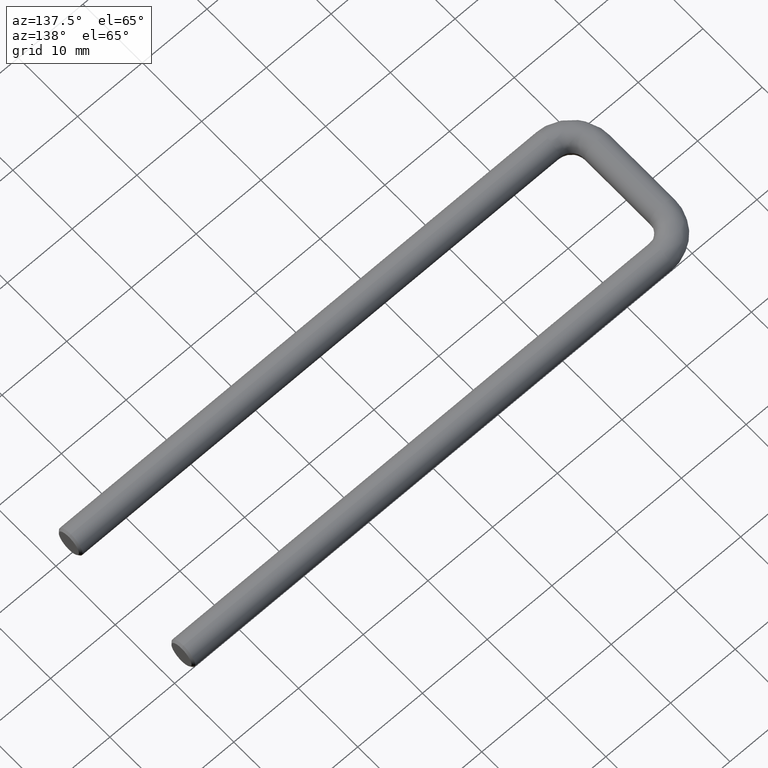
[diagram: clean part render]
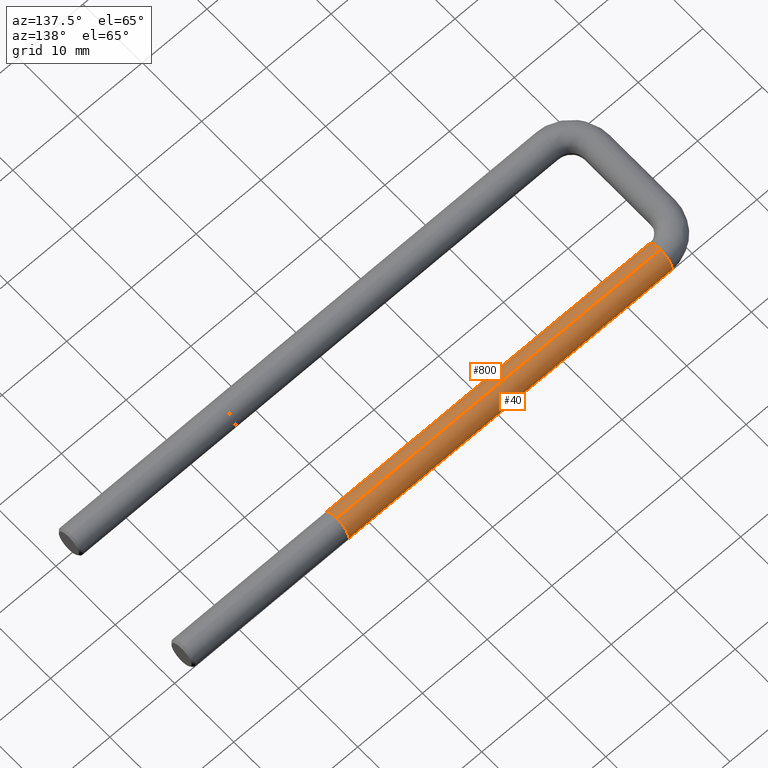
[diagram: same view with one multi-face feature highlighted, each face labeled with its STEP entity id]
A machine part, auxiliary view. The highlighted faces form ONE feature: a constant-radius fillet chain: 2 tangent blend faces with common blend radius 2 mm. The faces share edges in the B-rep.
Their STEP definitions:
[1] entity #800 (Cylinder):
#12 = CARTESIAN_POINT ( 'NONE',  ( 3.999999999999996400, 17.00000000000000000, 9.117408447827258500E-010 ) ) ;
#31 = CARTESIAN_POINT ( 'NONE',  ( 4.000000000000000000, 19.00000000000000000, 0.0000000000000000000 ) ) ;
#46 = CARTESIAN_POINT ( 'NONE',  ( 4.000000000000000000, 19.00000000000000000, 2.000000000000000000 ) ) ;
#112 = CARTESIAN_POINT ( 'NONE',  ( 54.00000000000000000, 19.00000000000000000, 0.0000000000000000000 ) ) ;
#129 = EDGE_CURVE ( 'NONE', #477, #500, #529, .T. ) ;
#172 = CARTESIAN_POINT ( 'NONE',  ( 54.00000000000000000, 19.00000000000000000, 0.0000000000000000000 ) ) ;
#177 = DIRECTION ( 'NONE',  ( 1.000000000000000000, 0.0000000000000000000, 0.0000000000000000000 ) ) ;
#215 = EDGE_CURVE ( 'NONE', #751, #268, #780, .T. ) ;
#268 = VERTEX_POINT ( 'NONE', #46 ) ;
#272 = AXIS2_PLACEMENT_3D ( 'NONE', #580, #583, #589 ) ;
#296 = DIRECTION ( 'NONE',  ( 0.0000000000000000000, 0.0000000000000000000, -1.000000000000000000 ) ) ;
#307 = EDGE_LOOP ( 'NONE', ( #822, #811, #796, #760, #582 ) ) ;
#415 = CARTESIAN_POINT ( 'NONE',  ( 54.00000000000000000, 19.00000000000000000, -2.000000000000000000 ) ) ;
#417 = VERTEX_POINT ( 'NONE', #774 ) ;
#423 = DIRECTION ( 'NONE',  ( -1.000000000000000000, 0.0000000000000000000, 0.0000000000000000000 ) ) ;
#428 = EDGE_CURVE ( 'NONE', #500, #417, #813, .T. ) ;
#433 = AXIS2_PLACEMENT_3D ( 'NONE', #31, #423, #707 ) ;
#477 = VERTEX_POINT ( 'NONE', #690 ) ;
#489 = EDGE_CURVE ( 'NONE', #477, #268, #754, .T. ) ;
#500 = VERTEX_POINT ( 'NONE', #631 ) ;
#523 = DIRECTION ( 'NONE',  ( -1.000000000000000000, -0.0000000000000000000, -0.0000000000000000000 ) ) ;
#529 = CIRCLE ( 'NONE', #825, 2.000000000000000000 ) ;
#531 = DIRECTION ( 'NONE',  ( 0.0000000000000000000, 0.0000000000000000000, 1.000000000000000000 ) ) ;
#546 = CYLINDRICAL_SURFACE ( 'NONE', #627, 2.000000000000000000 ) ;
#550 = FACE_OUTER_BOUND ( 'NONE', #307, .T. ) ;
#578 = EDGE_CURVE ( 'NONE', #417, #751, #679, .T. ) ;
#580 = CARTESIAN_POINT ( 'NONE',  ( 4.000000000000000000, 19.00000000000000000, 0.0000000000000000000 ) ) ;
#582 = ORIENTED_EDGE ( 'NONE', *, *, #578, .F. ) ;
#583 = DIRECTION ( 'NONE',  ( -1.000000000000000000, 0.0000000000000000000, 0.0000000000000000000 ) ) ;
#589 = DIRECTION ( 'NONE',  ( 0.0000000000000000000, 0.0000000000000000000, 1.000000000000000000 ) ) ;
#627 = AXIS2_PLACEMENT_3D ( 'NONE', #112, #523, #531 ) ;
#631 = CARTESIAN_POINT ( 'NONE',  ( 54.00000000000000000, 19.00000000000000000, -2.000000000000000000 ) ) ;
#637 = DIRECTION ( 'NONE',  ( -1.000000000000000000, -0.0000000000000000000, -0.0000000000000000000 ) ) ;
#659 = CARTESIAN_POINT ( 'NONE',  ( 54.00000000000000000, 19.00000000000000000, 2.000000000000000000 ) ) ;
#679 = CIRCLE ( 'NONE', #272, 2.000000000000000000 ) ;
#690 = CARTESIAN_POINT ( 'NONE',  ( 54.00000000000000000, 19.00000000000000000, 2.000000000000000000 ) ) ;
#707 = DIRECTION ( 'NONE',  ( 0.0000000000000000000, 0.0000000000000000000, 1.000000000000000000 ) ) ;
#743 = VECTOR ( 'NONE', #637, 1000.000000000000000 ) ;
#751 = VERTEX_POINT ( 'NONE', #12 ) ;
#754 = LINE ( 'NONE', #659, #743 ) ;
#755 = DIRECTION ( 'NONE',  ( -1.000000000000000000, -0.0000000000000000000, -0.0000000000000000000 ) ) ;
#760 = ORIENTED_EDGE ( 'NONE', *, *, #215, .F. ) ;
#774 = CARTESIAN_POINT ( 'NONE',  ( 4.000000000000000000, 19.00000000000000000, -2.000000000000000000 ) ) ;
#780 = CIRCLE ( 'NONE', #433, 2.000000000000000000 ) ;
#796 = ORIENTED_EDGE ( 'NONE', *, *, #489, .T. ) ;
#800 = ADVANCED_FACE ( 'NONE', ( #550 ), #546, .T. ) ;
#805 = VECTOR ( 'NONE', #755, 1000.000000000000000 ) ;
#811 = ORIENTED_EDGE ( 'NONE', *, *, #129, .F. ) ;
#813 = LINE ( 'NONE', #415, #805 ) ;
#822 = ORIENTED_EDGE ( 'NONE', *, *, #428, .F. ) ;
#825 = AXIS2_PLACEMENT_3D ( 'NONE', #172, #177, #296 ) ;
[2] entity #40 (Cylinder):
#4 = CARTESIAN_POINT ( 'NONE',  ( 54.00000000000000000, 19.00000000000000000, 0.0000000000000000000 ) ) ;
#33 = ORIENTED_EDGE ( 'NONE', *, *, #467, .F. ) ;
#40 = ADVANCED_FACE ( 'NONE', ( #511 ), #555, .T. ) ;
#46 = CARTESIAN_POINT ( 'NONE',  ( 4.000000000000000000, 19.00000000000000000, 2.000000000000000000 ) ) ;
#80 = AXIS2_PLACEMENT_3D ( 'NONE', #613, #606, #444 ) ;
#87 = ORIENTED_EDGE ( 'NONE', *, *, #428, .T. ) ;
#106 = EDGE_LOOP ( 'NONE', ( #522, #87, #445, #33, #473 ) ) ;
#134 = EDGE_CURVE ( 'NONE', #355, #417, #579, .T. ) ;
#237 = DIRECTION ( 'NONE',  ( 0.0000000000000000000, 0.0000000000000000000, -1.000000000000000000 ) ) ;
#268 = VERTEX_POINT ( 'NONE', #46 ) ;
#297 = DIRECTION ( 'NONE',  ( 1.000000000000000000, 0.0000000000000000000, 0.0000000000000000000 ) ) ;
#334 = AXIS2_PLACEMENT_3D ( 'NONE', #4, #297, #237 ) ;
#355 = VERTEX_POINT ( 'NONE', #453 ) ;
#415 = CARTESIAN_POINT ( 'NONE',  ( 54.00000000000000000, 19.00000000000000000, -2.000000000000000000 ) ) ;
#417 = VERTEX_POINT ( 'NONE', #774 ) ;
#428 = EDGE_CURVE ( 'NONE', #500, #417, #813, .T. ) ;
#444 = DIRECTION ( 'NONE',  ( 0.0000000000000000000, 0.0000000000000000000, 1.000000000000000000 ) ) ;
#445 = ORIENTED_EDGE ( 'NONE', *, *, #134, .F. ) ;
#453 = CARTESIAN_POINT ( 'NONE',  ( 3.999999999999996400, 20.99999999999999600, 1.739484485162024900E-009 ) ) ;
#467 = EDGE_CURVE ( 'NONE', #268, #355, #568, .T. ) ;
#473 = ORIENTED_EDGE ( 'NONE', *, *, #489, .F. ) ;
#477 = VERTEX_POINT ( 'NONE', #690 ) ;
#489 = EDGE_CURVE ( 'NONE', #477, #268, #754, .T. ) ;
#493 = DIRECTION ( 'NONE',  ( -1.000000000000000000, -0.0000000000000000000, -0.0000000000000000000 ) ) ;
#500 = VERTEX_POINT ( 'NONE', #631 ) ;
#511 = FACE_OUTER_BOUND ( 'NONE', #106, .T. ) ;
#522 = ORIENTED_EDGE ( 'NONE', *, *, #749, .F. ) ;
#552 = DIRECTION ( 'NONE',  ( 0.0000000000000000000, 0.0000000000000000000, 1.000000000000000000 ) ) ;
#555 = CYLINDRICAL_SURFACE ( 'NONE', #773, 2.000000000000000000 ) ;
#568 = CIRCLE ( 'NONE', #818, 2.000000000000000000 ) ;
#579 = CIRCLE ( 'NONE', #80, 2.000000000000000000 ) ;
#588 = CIRCLE ( 'NONE', #334, 2.000000000000000000 ) ;
#606 = DIRECTION ( 'NONE',  ( -1.000000000000000000, 0.0000000000000000000, 0.0000000000000000000 ) ) ;
#613 = CARTESIAN_POINT ( 'NONE',  ( 4.000000000000000000, 19.00000000000000000, 0.0000000000000000000 ) ) ;
#631 = CARTESIAN_POINT ( 'NONE',  ( 54.00000000000000000, 19.00000000000000000, -2.000000000000000000 ) ) ;
#637 = DIRECTION ( 'NONE',  ( -1.000000000000000000, -0.0000000000000000000, -0.0000000000000000000 ) ) ;
#650 = DIRECTION ( 'NONE',  ( 0.0000000000000000000, 0.0000000000000000000, 1.000000000000000000 ) ) ;
#651 = DIRECTION ( 'NONE',  ( -1.000000000000000000, 0.0000000000000000000, 0.0000000000000000000 ) ) ;
#658 = CARTESIAN_POINT ( 'NONE',  ( 4.000000000000000000, 19.00000000000000000, 0.0000000000000000000 ) ) ;
#659 = CARTESIAN_POINT ( 'NONE',  ( 54.00000000000000000, 19.00000000000000000, 2.000000000000000000 ) ) ;
#690 = CARTESIAN_POINT ( 'NONE',  ( 54.00000000000000000, 19.00000000000000000, 2.000000000000000000 ) ) ;
#706 = CARTESIAN_POINT ( 'NONE',  ( 54.00000000000000000, 19.00000000000000000, 0.0000000000000000000 ) ) ;
#743 = VECTOR ( 'NONE', #637, 1000.000000000000000 ) ;
#749 = EDGE_CURVE ( 'NONE', #500, #477, #588, .T. ) ;
#754 = LINE ( 'NONE', #659, #743 ) ;
#755 = DIRECTION ( 'NONE',  ( -1.000000000000000000, -0.0000000000000000000, -0.0000000000000000000 ) ) ;
#773 = AXIS2_PLACEMENT_3D ( 'NONE', #706, #493, #552 ) ;
#774 = CARTESIAN_POINT ( 'NONE',  ( 4.000000000000000000, 19.00000000000000000, -2.000000000000000000 ) ) ;
#805 = VECTOR ( 'NONE', #755, 1000.000000000000000 ) ;
#813 = LINE ( 'NONE', #415, #805 ) ;
#818 = AXIS2_PLACEMENT_3D ( 'NONE', #658, #651, #650 ) ;